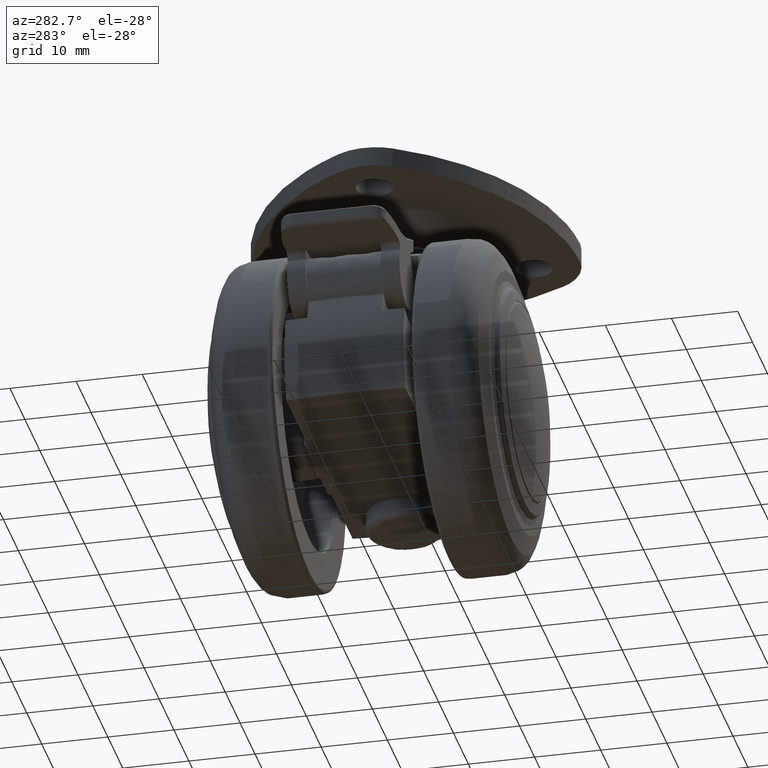
[diagram: clean part render]
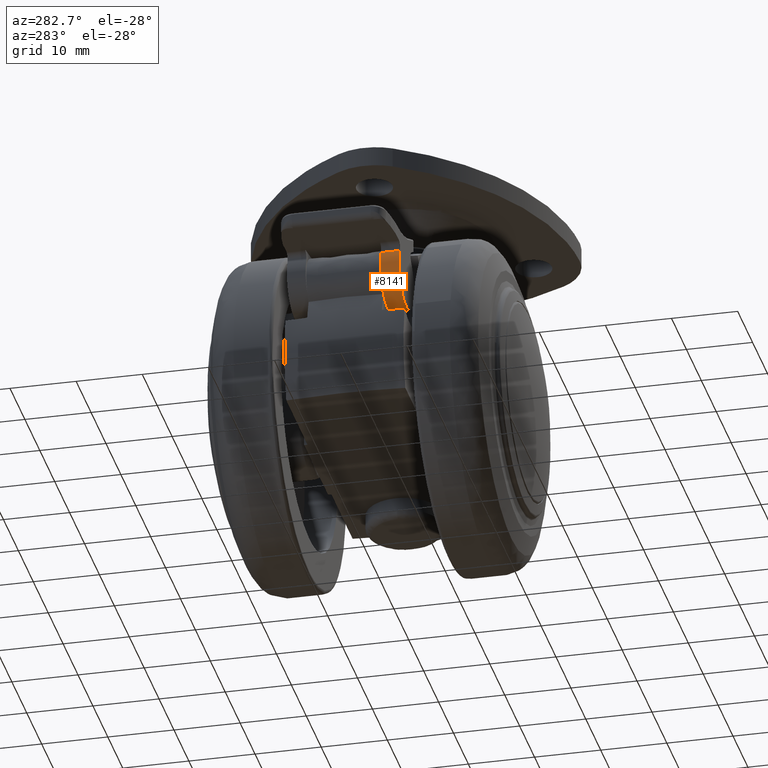
[diagram: same view with one face highlighted and labeled with its STEP entity id]
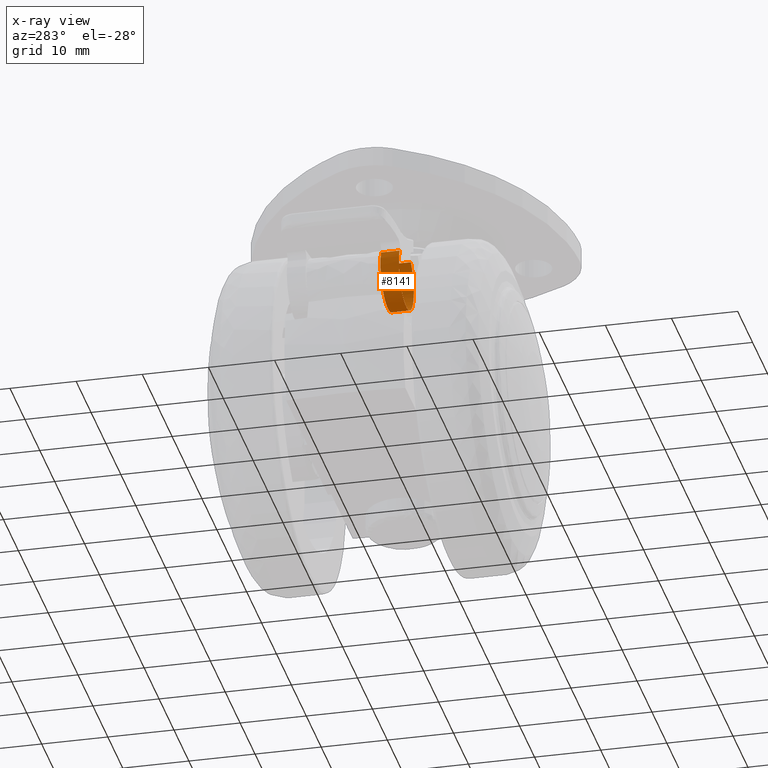
[diagram: x-ray of the same camera — body ghosted, the highlighted face saturated]
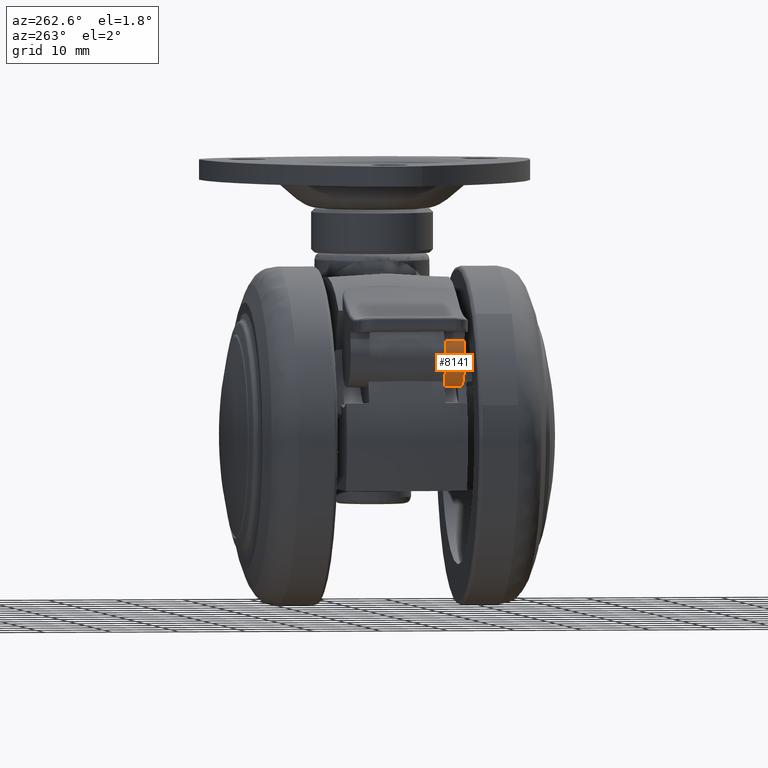
[diagram: same view with one face highlighted and labeled with its STEP entity id]
A machine part, auxiliary view. The second image highlights one B-rep face of the part: STEP entity #8141.
The next image is the same camera in x-ray: the body ghosted, the highlighted face saturated — about 0% of this face is hidden behind the body in this view.
A second angle (auxiliary view) of the same face is appended — the face is thin or edge-on in the first view.
In plain terms, the highlighted face is a freeform B-spline surface patch.
Its self-contained STEP definition (entity closure, byte-faithful):
#6110=CARTESIAN_POINT('',(-23.663294442750001,-8.449999999999999,14.764387677399300));
#6111=VERTEX_POINT('',#6110);
#6296=CARTESIAN_POINT('',(-16.087488416428851,-8.449999999999999,16.747940790586298));
#6297=VERTEX_POINT('',#6296);
#6334=CARTESIAN_POINT('',(-16.087488416428851,-8.449999999999957,16.747940790586298));
#6335=CARTESIAN_POINT('',(-15.340225414592030,-8.449999999999957,16.187396157157480));
#6336=CARTESIAN_POINT('',(-14.755245190841560,-8.449999999999957,15.413034423678480));
#6337=CARTESIAN_POINT('',(-14.085348634057601,-8.449999999999957,13.668990925617409));
#6338=CARTESIAN_POINT('',(-14.001517730003579,-8.449999999999957,12.702135023230079));
#6339=CARTESIAN_POINT('',(-14.361240553332420,-8.449999999999957,10.868818735652720));
#6340=CARTESIAN_POINT('',(-14.804211424193550,-8.449999999999957,10.005328860770410));
#6341=CARTESIAN_POINT('',(-16.083477591587140,-8.449999999999958,8.643738910424780));
#6342=CARTESIAN_POINT('',(-16.917700101573001,-8.449999999999957,8.147845010191448));
#6343=CARTESIAN_POINT('',(-18.725051135490389,-8.449999999999955,7.674631147209952));
#6344=CARTESIAN_POINT('',(-19.695251220443701,-8.449999999999957,7.698077929767694));
#6345=CARTESIAN_POINT('',(-21.477633423263160,-8.449999999999957,8.258044717169012));
#6346=CARTESIAN_POINT('',(-22.286927558983699,-8.449999999999958,8.793657411514552));
#6347=CARTESIAN_POINT('',(-23.498927754545520,-8.449999999999957,10.215453685907701));
#6348=CARTESIAN_POINT('',(-23.899670018451371,-8.449999999999957,11.099333538814941));
#6349=CARTESIAN_POINT('',(-24.170413275934362,-8.449999999999957,12.947886272292569));
#6350=CARTESIAN_POINT('',(-24.039975585994320,-8.449999999999957,13.909563955042280));
#6351=CARTESIAN_POINT('',(-23.663294442750001,-8.449999999999999,14.764387677399300));
#6352=B_SPLINE_CURVE_WITH_KNOTS('',3,(#6334,#6335,#6336,#6337,#6338,#6339,#6340,#6341,#6342,#6343,#6344,#6345,#6346,#6347,#6348,#6349,#6350,#6351),.UNSPECIFIED.,.F.,.U.,(4,2,2,2,2,2,2,2,4),(0.0,0.125000000000000,0.250000000000000,0.375000000000000,0.500000000000000,0.625000000000000,0.750000000000000,0.875000000000000,1.0),.UNSPECIFIED.);
#6353=EDGE_CURVE('',#6297,#6111,#6352,.T.);
#8017=CARTESIAN_POINT('',(-23.663294442750001,-5.650000000000000,14.764387677399300));
#8018=VERTEX_POINT('',#8017);
#8019=CARTESIAN_POINT('',(-23.663294442750001,-8.449999999999999,14.764387677399300));
#8020=CARTESIAN_POINT('',(-23.663294442750001,-5.650000000000000,14.764387677399300));
#8021=QUASI_UNIFORM_CURVE('',1,(#8019,#8020),.UNSPECIFIED.,.F.,.U.);
#8022=EDGE_CURVE('',#6111,#8018,#8021,.T.);
#8072=CARTESIAN_POINT('',(-16.087488416428851,-5.650000000000000,16.747940790586298));
#8073=VERTEX_POINT('',#8072);
#8074=CARTESIAN_POINT('',(-16.087488416428851,-8.449999999999999,16.747940790586298));
#8075=CARTESIAN_POINT('',(-16.087488416428851,-5.650000000000000,16.747940790586298));
#8076=QUASI_UNIFORM_CURVE('',1,(#8074,#8075),.UNSPECIFIED.,.F.,.U.);
#8077=EDGE_CURVE('',#6297,#8073,#8076,.T.);
#8097=CARTESIAN_POINT('',(-23.608948927165670,-8.520000000000000,14.883468805920700));
#8098=CARTESIAN_POINT('',(-23.608948927165670,-5.578249999999999,14.883468805920700));
#8099=CARTESIAN_POINT('',(-25.635251905077098,-8.520000000000000,10.593079550419956));
#8100=CARTESIAN_POINT('',(-25.635251905077098,-5.578250000000000,10.593079550419956));
#8101=CARTESIAN_POINT('',(-21.456790982927291,-8.520000000000000,8.345011925975372));
#8102=CARTESIAN_POINT('',(-21.456790982927291,-5.578249999999999,8.345011925975372));
#8103=CARTESIAN_POINT('',(-17.278330060777485,-8.520000000000000,6.096944301530792));
#8104=CARTESIAN_POINT('',(-17.278330060777485,-5.578250000000000,6.096944301530792));
#8105=CARTESIAN_POINT('',(-14.814659586897090,-8.520000000000000,10.152024019383310));
#8106=CARTESIAN_POINT('',(-14.814659586897090,-5.578249999999999,10.152024019383310));
#8107=CARTESIAN_POINT('',(-12.350989113016697,-8.520000000000000,14.207103737235828));
#8108=CARTESIAN_POINT('',(-12.350989113016697,-5.578250000000000,14.207103737235828));
#8109=CARTESIAN_POINT('',(-16.271572934930429,-8.520000000000000,16.879624311030771));
#8110=CARTESIAN_POINT('',(-16.271572934930429,-5.578249999999999,16.879624311030771));
#8118=(BOUNDED_SURFACE()B_SPLINE_SURFACE(1,2,((#8097,#8099,#8101,#8103,#8105,#8107,#8109),(#8098,#8100,#8102,#8104,#8106,#8108,#8110)),.UNSPECIFIED.,.F.,.F.,.U.)B_SPLINE_SURFACE_WITH_KNOTS((2,2),(3,2,2,3),(0.0,2.941750000000001),(0.0,7.979190919474377,15.958381838948750,23.937572758423130),.UNSPECIFIED.)GEOMETRIC_REPRESENTATION_ITEM()RATIONAL_B_SPLINE_SURFACE(((1.0,0.725374371012288,1.0,0.725374371012288,1.0,0.725374371012288,1.0),(1.0,0.725374371012288,1.0,0.725374371012288,1.0,0.725374371012288,1.0)))REPRESENTATION_ITEM('')SURFACE());
#8119=ORIENTED_EDGE('',*,*,#8077,.F.);
#8120=ORIENTED_EDGE('',*,*,#6353,.T.);
#8121=ORIENTED_EDGE('',*,*,#8022,.T.);
#8122=CARTESIAN_POINT('',(-23.663294442750001,-5.650000000000000,14.764387677399300));
#8123=CARTESIAN_POINT('',(-25.531470323309506,-5.650000000000000,10.524828157394344));
#8124=CARTESIAN_POINT('',(-21.446379731887578,-5.650000000000000,8.339426385580980));
#8125=CARTESIAN_POINT('',(-17.361289140465669,-5.650000000000000,6.154024613767617));
#8126=CARTESIAN_POINT('',(-14.871336771074549,-5.650000000000000,10.060952210042270));
#8127=CARTESIAN_POINT('',(-12.381384401683436,-5.650000000000000,13.967879806316928));
#8128=CARTESIAN_POINT('',(-16.087488416428851,-5.650000000000000,16.747940790586298));
#8136=(BOUNDED_CURVE()B_SPLINE_CURVE(2,(#8122,#8123,#8124,#8125,#8126,#8127,#8128),.UNSPECIFIED.,.F.,.U.)B_SPLINE_CURVE_WITH_KNOTS((3,2,2,3),(0.0,0.333333333333333,0.666666666666667,1.0),.UNSPECIFIED.)CURVE()GEOMETRIC_REPRESENTATION_ITEM()RATIONAL_B_SPLINE_CURVE((1.0,0.733519999040080,1.0,0.733519999040080,1.0,0.733519999040080,1.0))REPRESENTATION_ITEM(''));
#8137=EDGE_CURVE('',#8018,#8073,#8136,.T.);
#8138=ORIENTED_EDGE('',*,*,#8137,.T.);
#8139=EDGE_LOOP('',(#8119,#8120,#8121,#8138));
#8140=FACE_OUTER_BOUND('',#8139,.T.);
#8141=ADVANCED_FACE('',(#8140),#8118,.T.);